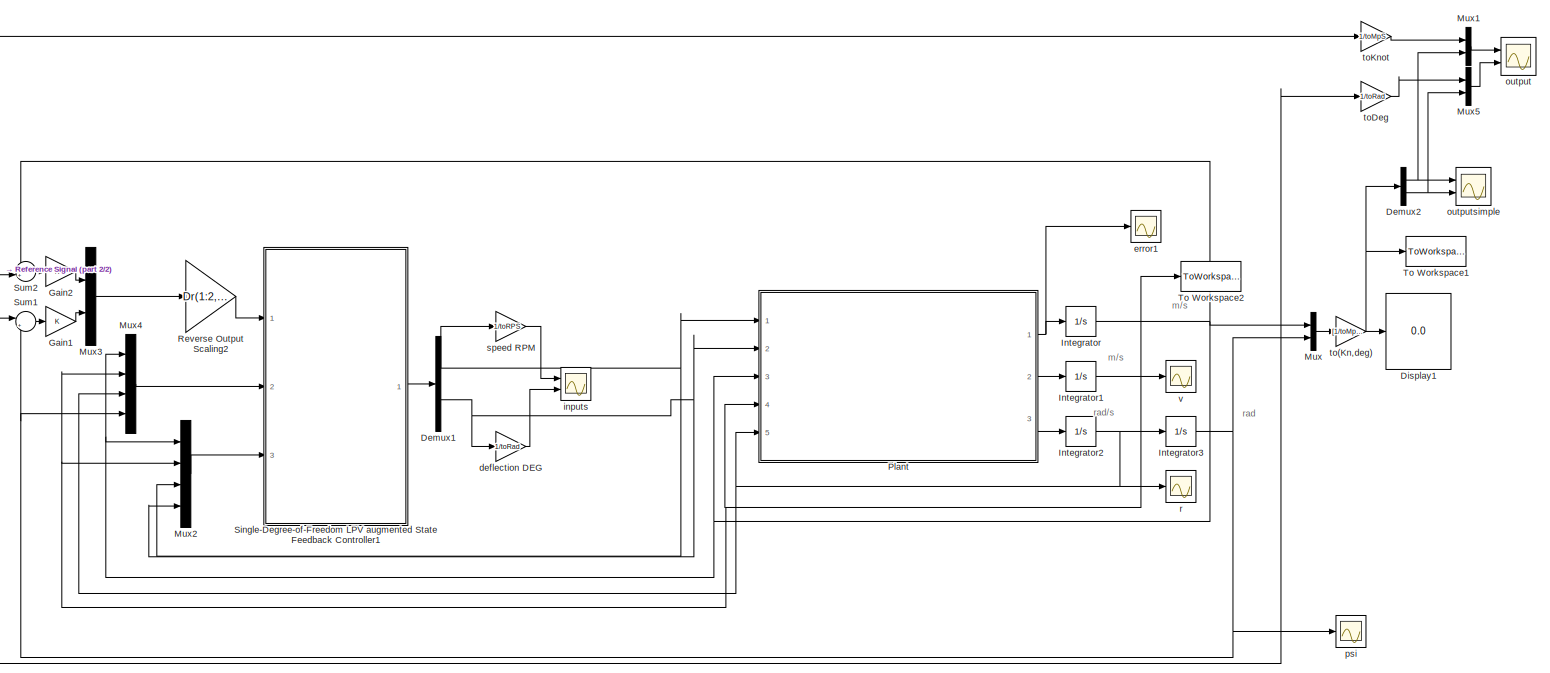
[diagram: root canvas - part 1/2, most of the canvas]
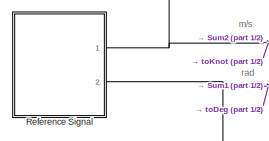
[diagram: root canvas - part 2/2, middle left region]
MODEL slx_003b346977f2
KIND model
CONFIG AbsTol = auto
CONFIG EnableMultiTasking = on
CONFIG FixedStep = .1
CONFIG MaxStep = auto
CONFIG MinStep = auto
CONFIG PostLoadFcn = load QLPV_data_2017-11-27_19-42.mat\nload Trajectory_data_Cux_Visby.rtz2017-11-16_14-55.mat
CONFIG RelTol = 1e-3
CONFIG SampleTimeConstraint = Unconstrained
CONFIG Solver = FixedStepAuto
CONFIG SolverName = FixedStepAuto
CONFIG StartTime = 0.0
CONFIG StopTime = time(end)
BLOCK [Demux] Demux1
  DisplayOption = bar
  Outputs = 2
  Ports = [1, 2]
BLOCK [Demux] Demux2
  DisplayOption = bar
  Outputs = 2
  Ports = [1, 2]
BLOCK [Display] Display1
  Decimation = 1
  Ports = [1]
BLOCK [Gain] Gain1
  OutDataTypeStr = Inherit: Inherit via internal rule
  ParamDataTypeStr = Inherit: Inherit via internal rule
  SaturateOnIntegerOverflow = off
BLOCK [Gain] Gain2
  OutDataTypeStr = Inherit: Inherit via internal rule
  ParamDataTypeStr = Inherit: Inherit via internal rule
  SaturateOnIntegerOverflow = off
BLOCK [Integrator] Integrator
  InitialCondition = .1*toMpS
  LimitOutput = on
  LowerSaturationLimit = 1e-1*toMpS
  Ports = [1, 1]
  UpperSaturationLimit = 16*toMpS
BLOCK [Integrator] Integrator1
  LowerSaturationLimit = -1*toMpS
  Ports = [1, 1]
  UpperSaturationLimit = 1*toMpS
BLOCK [Integrator] Integrator2
  Ports = [1, 1]
BLOCK [Integrator] Integrator3
  IgnoreLimit = on
  InitialCondition = 0*toRad
  LowerSaturationLimit = -180*toRad
  Ports = [1, 1]
  UpperSaturationLimit = 180*toRad
  WrapState = on
  WrappedStateLowerValue = -180*toRad
  WrappedStateUpperValue = 180*toRad
BLOCK [Mux] Mux
  DisplayOption = bar
  Inputs = 2
  Ports = [2, 1]
BLOCK [Mux] Mux1
  DisplayOption = bar
  Inputs = 2
  Ports = [2, 1]
BLOCK [Mux] Mux2
  DisplayOption = bar
  Ports = [4, 1]
BLOCK [Mux] Mux3
  DisplayOption = bar
  Inputs = 2
  Ports = [2, 1]
BLOCK [Mux] Mux4
  DisplayOption = bar
  Ports = [4, 1]
BLOCK [Mux] Mux5
  DisplayOption = bar
  Inputs = 2
  Ports = [2, 1]
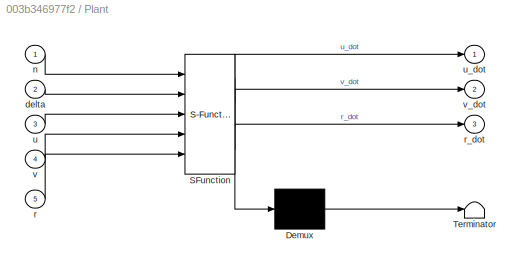
BLOCK [SubSystem] Plant
  ErrorFcn = Stateflow.Translate.translate
  PermitHierarchicalResolution = ExplicitOnly
  Ports = [5, 3]
  RequestExecContextInheritance = off
  SFBlockType = MATLAB Function
  TreatAsAtomicUnit = on
  Variant = off
BLOCK [Demux] Plant/ Demux 
  Outputs = 1
  Ports = [1, 1]
BLOCK [S-Function] Plant/ SFunction 
  EnableBusSupport = on
  FunctionName = sf_sfun
  PortCounts = [5 4]
  Ports = [5, 4]
  SFcnIsStateOwnerBlock = off
  SFunctionDeploymentMode = off
  Tag = Stateflow S-Function SimQLPV 2
BLOCK [Terminator] Plant/ Terminator 
BLOCK [Inport] Plant/delta
  IconDisplay = Port number
  Port = 2
BLOCK [Inport] Plant/n
  IconDisplay = Port number
BLOCK [Inport] Plant/r
  IconDisplay = Port number
  Port = 5
BLOCK [Outport] Plant/r_dot
  IconDisplay = Port number
  Port = 3
BLOCK [Inport] Plant/u
  IconDisplay = Port number
  Port = 3
BLOCK [Outport] Plant/u_dot
  IconDisplay = Port number
BLOCK [Inport] Plant/v
  IconDisplay = Port number
  Port = 4
BLOCK [Outport] Plant/v_dot
  IconDisplay = Port number
  Port = 2
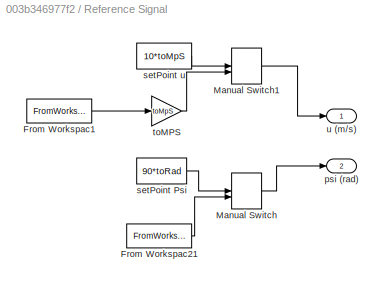
BLOCK [SubSystem] Reference Signal
  Ports = [0, 2]
  RequestExecContextInheritance = off
  Variant = off
BLOCK [FromWorkspace] Reference Signal/From Workspac1
  Interpolate = off
  OutputAfterFinalValue = Holding final value
  SampleTime = 0
  VariableName = [time ref_u]
BLOCK [FromWorkspace] Reference Signal/From Workspac21
  Interpolate = off
  OutputAfterFinalValue = Holding final value
  SampleTime = 0
  VariableName = [time ref_psi]
BLOCK [ManualSwitch] Reference Signal/Manual Switch
BLOCK [ManualSwitch] Reference Signal/Manual Switch1
BLOCK [Outport] Reference Signal/psi (rad)
  IconDisplay = Port number
  Port = 2
BLOCK [Constant] Reference Signal/setPoint Psi
  Value = 90*toRad
BLOCK [Constant] Reference Signal/setPoint u
  Value = 10*toMpS
BLOCK [Gain] Reference Signal/toMPS
  Gain = toMpS
  OutDataTypeStr = Inherit: Inherit via internal rule
  ParamDataTypeStr = Inherit: Inherit via internal rule
  SaturateOnIntegerOverflow = off
BLOCK [Outport] Reference Signal/u (m//s)
  IconDisplay = Port number
BLOCK [Gain] Reverse Output Scaling2
  Gain = Dr(1:2,1:2)^-1
  Multiplication = Matrix(K*u)
  OutDataTypeStr = Inherit: Inherit via internal rule
  ParamDataTypeStr = Inherit: Inherit via internal rule
  SaturateOnIntegerOverflow = off
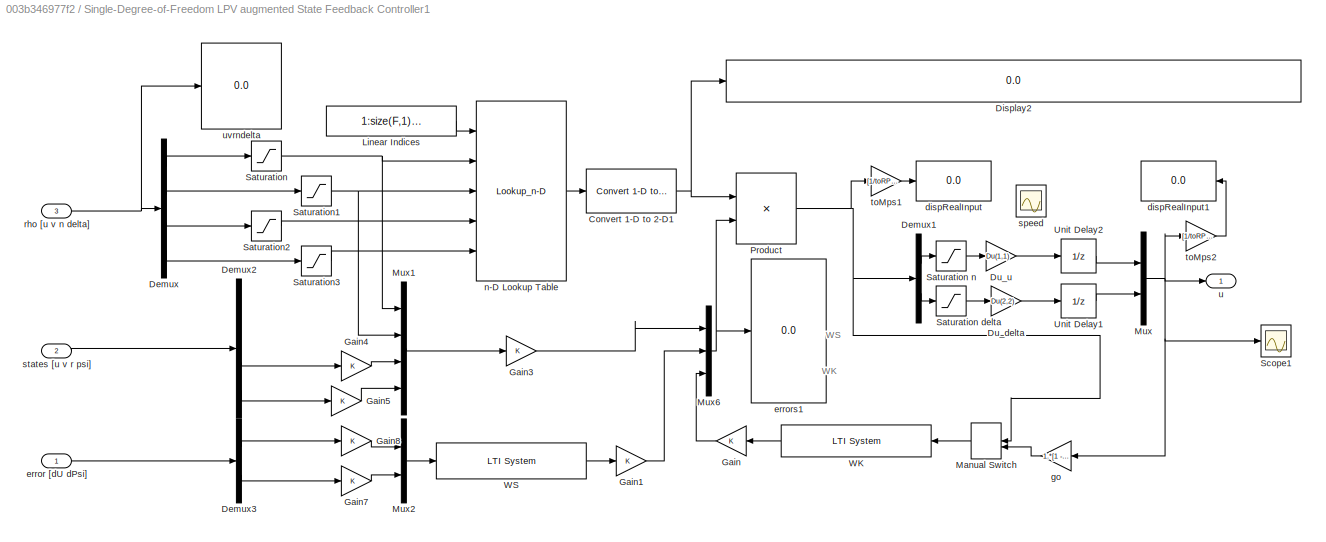
BLOCK [SubSystem] Single-Degree-of-Freedom LPV augmented State Feedback Controller1
  Ports = [3, 1]
  RequestExecContextInheritance = off
  Variant = off
BLOCK [Reference] Single-Degree-of-Freedom LPV augmented State Feedback Controller1/Convert 1-D to 2-D1  REF=dspsigattribs/Convert 1-D to 2-D
  Ports = [1, 1]
  SourceBlock = dspsigattribs/Convert 1-D to 2-D
  SourceProductBaseCode = DS
  SourceProductName = DSP System Toolbox
  SourceType = Convert 1-D to 2-D
BLOCK [Demux] Single-Degree-of-Freedom LPV augmented State Feedback Controller1/Demux
  DisplayOption = bar
  Ports = [1, 4]
BLOCK [Demux] Single-Degree-of-Freedom LPV augmented State Feedback Controller1/Demux1
  DisplayOption = bar
  Outputs = 2
  Ports = [1, 2]
BLOCK [Demux] Single-Degree-of-Freedom LPV augmented State Feedback Controller1/Demux2
  DisplayOption = bar
  Ports = [1, 4]
BLOCK [Demux] Single-Degree-of-Freedom LPV augmented State Feedback Controller1/Demux3
  DisplayOption = bar
  Outputs = 2
  Ports = [1, 2]
BLOCK [Display] Single-Degree-of-Freedom LPV augmented State Feedback Controller1/Display2
  Decimation = 1
  Ports = [1]
BLOCK [Gain] Single-Degree-of-Freedom LPV augmented State Feedback Controller1/Du_delta
  Gain = Du(2,2)
  OutDataTypeStr = Inherit: Inherit via internal rule
  ParamDataTypeStr = Inherit: Inherit via internal rule
  SaturateOnIntegerOverflow = off
BLOCK [Gain] Single-Degree-of-Freedom LPV augmented State Feedback Controller1/Du_u
  Gain = Du(1,1)
  OutDataTypeStr = Inherit: Inherit via internal rule
  ParamDataTypeStr = Inherit: Inherit via internal rule
  SaturateOnIntegerOverflow = off
BLOCK [Gain] Single-Degree-of-Freedom LPV augmented State Feedback Controller1/Gain
  OutDataTypeStr = Inherit: Inherit via internal rule
  ParamDataTypeStr = Inherit: Inherit via internal rule
  SaturateOnIntegerOverflow = off
BLOCK [Gain] Single-Degree-of-Freedom LPV augmented State Feedback Controller1/Gain1
  OutDataTypeStr = Inherit: Inherit via internal rule
  ParamDataTypeStr = Inherit: Inherit via internal rule
  SaturateOnIntegerOverflow = off
BLOCK [Gain] Single-Degree-of-Freedom LPV augmented State Feedback Controller1/Gain3
  OutDataTypeStr = Inherit: Inherit via internal rule
  ParamDataTypeStr = Inherit: Inherit via internal rule
  SaturateOnIntegerOverflow = off
BLOCK [Gain] Single-Degree-of-Freedom LPV augmented State Feedback Controller1/Gain4
  OutDataTypeStr = Inherit: Inherit via internal rule
  ParamDataTypeStr = Inherit: Inherit via internal rule
  SaturateOnIntegerOverflow = off
BLOCK [Gain] Single-Degree-of-Freedom LPV augmented State Feedback Controller1/Gain5
  OutDataTypeStr = Inherit: Inherit via internal rule
  ParamDataTypeStr = Inherit: Inherit via internal rule
  SaturateOnIntegerOverflow = off
BLOCK [Gain] Single-Degree-of-Freedom LPV augmented State Feedback Controller1/Gain7
  OutDataTypeStr = Inherit: Inherit via internal rule
  ParamDataTypeStr = Inherit: Inherit via internal rule
  SaturateOnIntegerOverflow = off
BLOCK [Gain] Single-Degree-of-Freedom LPV augmented State Feedback Controller1/Gain8
  OutDataTypeStr = Inherit: Inherit via internal rule
  ParamDataTypeStr = Inherit: Inherit via internal rule
  SaturateOnIntegerOverflow = off
BLOCK [Constant] Single-Degree-of-Freedom LPV augmented State Feedback Controller1/Linear Indices
  Value = 1:size(F,1)*size(F,2)
BLOCK [ManualSwitch] Single-Degree-of-Freedom LPV augmented State Feedback Controller1/Manual Switch
  CurrentSetting = 0
BLOCK [Mux] Single-Degree-of-Freedom LPV augmented State Feedback Controller1/Mux
  DisplayOption = bar
  Inputs = 2
  Ports = [2, 1]
BLOCK [Mux] Single-Degree-of-Freedom LPV augmented State Feedback Controller1/Mux1
  DisplayOption = bar
  Ports = [4, 1]
BLOCK [Mux] Single-Degree-of-Freedom LPV augmented State Feedback Controller1/Mux2
  DisplayOption = bar
  Inputs = 2
  Ports = [2, 1]
BLOCK [Mux] Single-Degree-of-Freedom LPV augmented State Feedback Controller1/Mux6
  DisplayOption = bar
  Inputs = 3
  Ports = [3, 1]
BLOCK [Product] Single-Degree-of-Freedom LPV augmented State Feedback Controller1/Product
  InputSameDT = off
  Multiplication = Matrix(*)
  OutDataTypeStr = Inherit: Inherit via internal rule
  Ports = [2, 1]
  RndMeth = Floor
  SaturateOnIntegerOverflow = off
BLOCK [Saturate] Single-Degree-of-Freedom LPV augmented State Feedback Controller1/Saturation
  InputPortMap = u0
  LowerLimit = F.Parameter.u.Range(1)
  Ports = [1, 1]
  UpperLimit = F.Parameter.u.Range(2)
BLOCK [Saturate] Single-Degree-of-Freedom LPV augmented State Feedback Controller1/Saturation delta
  InputPortMap = u0
  LowerLimit = 10*toRad/Du(2,2)
  Ports = [1, 1]
  UpperLimit = -10*toRad/Du(2,2)
BLOCK [Saturate] Single-Degree-of-Freedom LPV augmented State Feedback Controller1/Saturation n
  InputPortMap = u0
  LinearizeAsGain = off
  LowerLimit = -70*toRPS/Du(1,1)
  Ports = [1, 1]
  UpperLimit = 80*toRPS/Du(1,1)
BLOCK [Saturate] Single-Degree-of-Freedom LPV augmented State Feedback Controller1/Saturation1
  InputPortMap = u0
  LowerLimit = F.Parameter.v.Range(1)
  Ports = [1, 1]
  UpperLimit = F.Parameter.v.Range(2)
BLOCK [Saturate] Single-Degree-of-Freedom LPV augmented State Feedback Controller1/Saturation2
  InputPortMap = u0
  LowerLimit = F.Parameter.n.Range(1)
  Ports = [1, 1]
  UpperLimit = F.Parameter.n.Range(2)
BLOCK [Saturate] Single-Degree-of-Freedom LPV augmented State Feedback Controller1/Saturation3
  InputPortMap = u0
  LowerLimit = F.Parameter.delta.Range(1)
  Ports = [1, 1]
  UpperLimit = F.Parameter.delta.Range(2)
BLOCK [Scope] Single-Degree-of-Freedom LPV augmented State Feedback Controller1/Scope1
  NumInputPorts = 1
  Ports = [1]
  ScopeSpecificationString = Simulink.scopes.TimeScopeBlockCfg('CurrentConfiguration', extmgr.ConfigurationSet(extmgr.Configuration('Core','General UI',true),extmgr.Configuration('Core','Source UI',true),extmgr.Configuration('Sources','WiredSimulink',true,'DataLoggingVariableName','ScopeData1'),extmgr.Configuration('Visuals','Time Domain',true,'SerializedDisplays',{struct('MinYLimReal','-1.66667','MaxYLimReal','1.66667','YLab...<+1506ch>
BLOCK [UnitDelay] Single-Degree-of-Freedom LPV augmented State Feedback Controller1/Unit Delay1
  InputProcessing = Elements as channels (sample based)
  SampleTime = -1
BLOCK [UnitDelay] Single-Degree-of-Freedom LPV augmented State Feedback Controller1/Unit Delay2
  InputProcessing = Elements as channels (sample based)
  SampleTime = -1
BLOCK [Reference] Single-Degree-of-Freedom LPV augmented State Feedback Controller1/WK  REF=cstblocks/LTI System
  Ports = [1, 1]
  SourceBlock = cstblocks/LTI System
  SourceProductBaseCode = CT
  SourceProductName = Control System Toolbox
  SourceType = LTI Block
BLOCK [Reference] Single-Degree-of-Freedom LPV augmented State Feedback Controller1/WS  REF=cstblocks/LTI System
  Ports = [1, 1]
  SourceBlock = cstblocks/LTI System
  SourceProductBaseCode = CT
  SourceProductName = Control System Toolbox
  SourceType = LTI Block
BLOCK [Display] Single-Degree-of-Freedom LPV augmented State Feedback Controller1/dispRealInput
  Decimation = 1
  Ports = [1]
BLOCK [Display] Single-Degree-of-Freedom LPV augmented State Feedback Controller1/dispRealInput1
  Decimation = 1
  Ports = [1]
BLOCK [Inport] Single-Degree-of-Freedom LPV augmented State Feedback Controller1/error [dU dPsi]
  IconDisplay = Port number
BLOCK [Display] Single-Degree-of-Freedom LPV augmented State Feedback Controller1/errors1
  Decimation = 1
  Ports = [1]
BLOCK [Gain] Single-Degree-of-Freedom LPV augmented State Feedback Controller1/go
  Gain = 1.*[1 -1]
  OutDataTypeStr = Inherit: Inherit via internal rule
  ParamDataTypeStr = Inherit: Inherit via internal rule
  SaturateOnIntegerOverflow = off
BLOCK [Lookup_n-D] Single-Degree-of-Freedom LPV augmented State Feedback Controller1/n-D Lookup Table
  BreakpointsForDimension1 = 1:size(F,1)*size(F,2)
  BreakpointsForDimension2 = F.Parameter.u.GridData
  BreakpointsForDimension3 = F.Parameter.v.GridData
  BreakpointsForDimension4 = F.Parameter.n.GridData
  BreakpointsForDimension5 = F.Parameter.delta.GridData
  BreakpointsForDimension6 = F.Parameter.delta.GridData
  ExtrapMethod = Clip
  InternalRulePriority = Speed
  NumberOfTableDimensions = 5
  Ports = [5, 1]
  RndMeth = Simplest
  Table = reshape(F.Data,[size(F,1)*size(F,2), size(F.Domain)])
  UseLastTableValue = on
BLOCK [Inport] Single-Degree-of-Freedom LPV augmented State Feedback Controller1/rho [u v n delta]
  IconDisplay = Port number
  Port = 3
BLOCK [Scope] Single-Degree-of-Freedom LPV augmented State Feedback Controller1/speed
  NumInputPorts = 1
  Ports = [1]
  ScopeSpecificationString = Simulink.scopes.TimeScopeBlockCfg('CurrentConfiguration', extmgr.ConfigurationSet(extmgr.Configuration('Core','General UI',true),extmgr.Configuration('Core','Source UI',true),extmgr.Configuration('Sources','WiredSimulink',true,'DataLoggingVariableName','ScopeData1'),extmgr.Configuration('Visuals','Time Domain',true,'SerializedDisplays',{struct('MinYLimReal','-21615146.90013','MaxYLimReal','1923789...<+1544ch>
BLOCK [Inport] Single-Degree-of-Freedom LPV augmented State Feedback Controller1/states [u v r psi]
  IconDisplay = Port number
  Port = 2
BLOCK [Gain] Single-Degree-of-Freedom LPV augmented State Feedback Controller1/toMps1
  Gain = [1/toRPS 1/toRad]
  OutDataTypeStr = Inherit: Inherit via internal rule
  ParamDataTypeStr = Inherit: Inherit via internal rule
  SaturateOnIntegerOverflow = off
BLOCK [Gain] Single-Degree-of-Freedom LPV augmented State Feedback Controller1/toMps2
  Gain = [1/toRPS 1/toRad]
  OutDataTypeStr = Inherit: Inherit via internal rule
  ParamDataTypeStr = Inherit: Inherit via internal rule
  SaturateOnIntegerOverflow = off
BLOCK [Outport] Single-Degree-of-Freedom LPV augmented State Feedback Controller1/u
  IconDisplay = Port number
BLOCK [Display] Single-Degree-of-Freedom LPV augmented State Feedback Controller1/uvrndelta
  Decimation = 1
  Ports = [1]
BLOCK [Sum] Sum1
  IconShape = round
  InputSameDT = off
  Inputs = |+-
  OutDataTypeStr = Inherit: Inherit via internal rule
  Ports = [2, 1]
  SaturateOnIntegerOverflow = off
BLOCK [Sum] Sum2
  IconShape = round
  InputSameDT = off
  Inputs = -+|
  OutDataTypeStr = Inherit: Inherit via internal rule
  Ports = [2, 1]
  SaturateOnIntegerOverflow = off
BLOCK [ToWorkspace] To Workspace1
  FixptAsFi = on
  MaxDataPoints = inf
  Ports = [1]
  SampleTime = -1
  SaveFormat = Timeseries
  VariableName = lpv_out
BLOCK [ToWorkspace] To Workspace2
  FixptAsFi = on
  MaxDataPoints = inf
  Ports = [1]
  SampleTime = -1
  SaveFormat = Timeseries
  VariableName = lpv_sway
BLOCK [Gain] deflection DEG
  Gain = 1/toRad
  OutDataTypeStr = Inherit: Inherit via internal rule
  ParamDataTypeStr = Inherit: Inherit via internal rule
  SaturateOnIntegerOverflow = off
BLOCK [Scope] error1
  NumInputPorts = 1
  Ports = [1]
  ScopeSpecificationString = Simulink.scopes.TimeScopeBlockCfg('CurrentConfiguration', extmgr.ConfigurationSet(extmgr.Configuration('Core','General UI',true),extmgr.Configuration('Core','Source UI',true),extmgr.Configuration('Sources','WiredSimulink',true,'DataLoggingVariableName','ScopeData1'),extmgr.Configuration('Visuals','Time Domain',true,'SerializedDisplays',{struct('MinYLimReal','-0.04911','MaxYLimReal','0.03007','YLab...<+1495ch>
BLOCK [Scope] inputs
  NumInputPorts = 2
  Ports = [2]
  ScopeSpecificationString = Simulink.scopes.TimeScopeBlockCfg('CurrentConfiguration', extmgr.ConfigurationSet(extmgr.Configuration('Core','General UI',true),extmgr.Configuration('Core','Source UI',true),extmgr.Configuration('Sources','WiredSimulink',true,'DataLoggingVariableName','ScopeData1'),extmgr.Configuration('Visuals','Time Domain',true,'SerializedDisplays',{struct('MinYLimReal','-100.00000','MaxYLimReal','100.00000','...<+2017ch>
BLOCK [Scope] output
  NumInputPorts = 2
  Ports = [2]
  ScopeSpecificationString = Simulink.scopes.TimeScopeBlockCfg('CurrentConfiguration', extmgr.ConfigurationSet(extmgr.Configuration('Core','General UI',true,'FigureColor',[1 1 1]),extmgr.Configuration('Core','Source UI',true),extmgr.Configuration('Sources','WiredSimulink',true,'DataLoggingVariableName','ScopeData1'),extmgr.Configuration('Visuals','Time Domain',true,'PlotType','Line','SerializedDisplays',{struct('MinYLimReal',...<+3918ch>
BLOCK [Scope] outputsimple
  NumInputPorts = 2
  Ports = [2]
  ScopeSpecificationString = Simulink.scopes.TimeScopeBlockCfg('CurrentConfiguration', extmgr.ConfigurationSet(extmgr.Configuration('Core','General UI',true,'FigureColor',[1 1 1]),extmgr.Configuration('Core','Source UI',true),extmgr.Configuration('Sources','WiredSimulink',true,'DataLoggingVariableName','ScopeData1'),extmgr.Configuration('Visuals','Time Domain',true,'PlotType','Line','SerializedDisplays',{struct('MinYLimReal',...<+4044ch>
BLOCK [Scope] psi
  NumInputPorts = 1
  Ports = [1]
  ScopeSpecificationString = Simulink.scopes.TimeScopeBlockCfg('CurrentConfiguration', extmgr.ConfigurationSet(extmgr.Configuration('Core','General UI',true),extmgr.Configuration('Core','Source UI',true),extmgr.Configuration('Sources','WiredSimulink',true,'DataLoggingVariableName','ScopeData2'),extmgr.Configuration('Visuals','Time Domain',true,'SerializedDisplays',{struct('MinYLimReal','-0.01386','MaxYLimReal','0.11992','YLab...<+1439ch>
BLOCK [Scope] r
  NumInputPorts = 1
  Ports = [1]
  ScopeSpecificationString = Simulink.scopes.TimeScopeBlockCfg('CurrentConfiguration', extmgr.ConfigurationSet(extmgr.Configuration('Core','General UI',true),extmgr.Configuration('Core','Source UI',true),extmgr.Configuration('Sources','WiredSimulink',true,'DataLoggingVariableName','ScopeData2'),extmgr.Configuration('Visuals','Time Domain',true,'SerializedDisplays',{struct('MinYLimReal','-0.0000047','MaxYLimReal','0.0000005','...<+1440ch>
BLOCK [Gain] speed RPM
  Gain = 1/toRPS
  OutDataTypeStr = Inherit: Inherit via internal rule
  ParamDataTypeStr = Inherit: Inherit via internal rule
  SaturateOnIntegerOverflow = off
BLOCK [Gain] to(Kn,deg)
  Gain = [1/toMpS 1/toRad]
  OutDataTypeStr = Inherit: Inherit via internal rule
  ParamDataTypeStr = Inherit: Inherit via internal rule
  SaturateOnIntegerOverflow = off
BLOCK [Gain] toDeg
  Gain = 1/toRad
  OutDataTypeStr = Inherit: Inherit via internal rule
  ParamDataTypeStr = Inherit: Inherit via internal rule
  SaturateOnIntegerOverflow = off
BLOCK [Gain] toKnot
  Gain = 1/toMpS
  OutDataTypeStr = Inherit: Inherit via internal rule
  ParamDataTypeStr = Inherit: Inherit via internal rule
  SaturateOnIntegerOverflow = off
BLOCK [Scope] v
  NumInputPorts = 1
  Ports = [1]
  ScopeSpecificationString = Simulink.scopes.TimeScopeBlockCfg('CurrentConfiguration', extmgr.ConfigurationSet(extmgr.Configuration('Core','General UI',true),extmgr.Configuration('Core','Source UI',true),extmgr.Configuration('Sources','WiredSimulink',true,'DataLoggingVariableName','ScopeData1'),extmgr.Configuration('Visuals','Time Domain',true,'SerializedDisplays',{struct('MinYLimReal','-0.00002','MaxYLimReal','0.00017','YLab...<+1463ch>
ANNOTATION (root): m/s
ANNOTATION (root): rad
ANNOTATION (root): rad/s
ANNOTATION Single-Degree-of-Freedom LPV augmented State Feedback Controller1: WK
ANNOTATION Single-Degree-of-Freedom LPV augmented State Feedback Controller1: WS
NET Demux1:1 -> Mux2:3, Plant:1, speed RPM:1
NET Demux1:2 -> Mux2:4, Plant:2, deflection DEG:1
NET Demux2:1 -> Mux1:2, outputsimple:1
NET Demux2:2 -> Mux5:2, outputsimple:2
LINE Gain1:1 -> Mux3:2
LINE Gain2:1 -> Mux3:1
NET Integrator1:1 -> Mux2:2, Mux4:2, Plant:4, To Workspace2:1, v:1
NET Integrator2:1 -> Integrator3:1, Mux4:3, Plant:5, r:1
NET Integrator3:1 -> Mux4:4, Mux:2, Sum1:2, psi:1
NET Integrator:1 -> Mux2:1, Mux4:1, Mux:1, Plant:3, Sum2:1
LINE Mux1:1 -> output:1
LINE Mux2:1 -> Single-Degree-of-Freedom LPV augmented State Feedback Controller1:3
LINE Mux3:1 -> Reverse Output Scaling2:1
LINE Mux4:1 -> Single-Degree-of-Freedom LPV augmented State Feedback Controller1:2
LINE Mux5:1 -> output:2
LINE Mux:1 -> to(Kn,deg):1
NET Plant:1 -> Integrator:1, error1:1
LINE Plant:2 -> Integrator1:1
LINE Plant:3 -> Integrator2:1
LINE Reference Signal/From Workspac1:1 -> Reference Signal/toMPS:1
LINE Reference Signal/From Workspac21:1 -> Reference Signal/Manual Switch:2
LINE Reference Signal/Manual Switch1:1 -> Reference Signal/u (m//s):1
LINE Reference Signal/Manual Switch:1 -> Reference Signal/psi (rad):1
LINE Reference Signal/setPoint Psi:1 -> Reference Signal/Manual Switch:1
LINE Reference Signal/setPoint u:1 -> Reference Signal/Manual Switch1:1
LINE Reference Signal/toMPS:1 -> Reference Signal/Manual Switch1:2
NET Reference Signal:1 -> Sum2:2, toKnot:1
NET Reference Signal:2 -> Sum1:1, toDeg:1
LINE Reverse Output Scaling2:1 -> Single-Degree-of-Freedom LPV augmented State Feedback Controller1:1
NET Single-Degree-of-Freedom LPV augmented State Feedback Controller1/Convert 1-D to 2-D1:1 -> Single-Degree-of-Freedom LPV augmented State Feedback Controller1/Display2:1, Single-Degree-of-Freedom LPV augmented State Feedback Controller1/Product:1
LINE Single-Degree-of-Freedom LPV augmented State Feedback Controller1/Demux1:1 -> Single-Degree-of-Freedom LPV augmented State Feedback Controller1/Saturation n:1
LINE Single-Degree-of-Freedom LPV augmented State Feedback Controller1/Demux1:2 -> Single-Degree-of-Freedom LPV augmented State Feedback Controller1/Saturation delta:1
LINE Single-Degree-of-Freedom LPV augmented State Feedback Controller1/Demux2:3 -> Single-Degree-of-Freedom LPV augmented State Feedback Controller1/Gain4:1
LINE Single-Degree-of-Freedom LPV augmented State Feedback Controller1/Demux2:4 -> Single-Degree-of-Freedom LPV augmented State Feedback Controller1/Gain5:1
LINE Single-Degree-of-Freedom LPV augmented State Feedback Controller1/Demux3:1 -> Single-Degree-of-Freedom LPV augmented State Feedback Controller1/Gain8:1
LINE Single-Degree-of-Freedom LPV augmented State Feedback Controller1/Demux3:2 -> Single-Degree-of-Freedom LPV augmented State Feedback Controller1/Gain7:1
LINE Single-Degree-of-Freedom LPV augmented State Feedback Controller1/Demux:1 -> Single-Degree-of-Freedom LPV augmented State Feedback Controller1/Saturation:1
LINE Single-Degree-of-Freedom LPV augmented State Feedback Controller1/Demux:2 -> Single-Degree-of-Freedom LPV augmented State Feedback Controller1/Saturation1:1
LINE Single-Degree-of-Freedom LPV augmented State Feedback Controller1/Demux:3 -> Single-Degree-of-Freedom LPV augmented State Feedback Controller1/Saturation2:1
LINE Single-Degree-of-Freedom LPV augmented State Feedback Controller1/Demux:4 -> Single-Degree-of-Freedom LPV augmented State Feedback Controller1/Saturation3:1
LINE Single-Degree-of-Freedom LPV augmented State Feedback Controller1/Du_delta:1 -> Single-Degree-of-Freedom LPV augmented State Feedback Controller1/Unit Delay1:1
LINE Single-Degree-of-Freedom LPV augmented State Feedback Controller1/Du_u:1 -> Single-Degree-of-Freedom LPV augmented State Feedback Controller1/Unit Delay2:1
LINE Single-Degree-of-Freedom LPV augmented State Feedback Controller1/Gain1:1 -> Single-Degree-of-Freedom LPV augmented State Feedback Controller1/Mux6:2
LINE Single-Degree-of-Freedom LPV augmented State Feedback Controller1/Gain3:1 -> Single-Degree-of-Freedom LPV augmented State Feedback Controller1/Mux6:1
LINE Single-Degree-of-Freedom LPV augmented State Feedback Controller1/Gain4:1 -> Single-Degree-of-Freedom LPV augmented State Feedback Controller1/Mux1:3
LINE Single-Degree-of-Freedom LPV augmented State Feedback Controller1/Gain5:1 -> Single-Degree-of-Freedom LPV augmented State Feedback Controller1/Mux1:4
LINE Single-Degree-of-Freedom LPV augmented State Feedback Controller1/Gain7:1 -> Single-Degree-of-Freedom LPV augmented State Feedback Controller1/Mux2:2
LINE Single-Degree-of-Freedom LPV augmented State Feedback Controller1/Gain8:1 -> Single-Degree-of-Freedom LPV augmented State Feedback Controller1/Mux2:1
LINE Single-Degree-of-Freedom LPV augmented State Feedback Controller1/Gain:1 -> Single-Degree-of-Freedom LPV augmented State Feedback Controller1/Mux6:3
LINE Single-Degree-of-Freedom LPV augmented State Feedback Controller1/Linear Indices:1 -> Single-Degree-of-Freedom LPV augmented State Feedback Controller1/n-D Lookup Table:1
LINE Single-Degree-of-Freedom LPV augmented State Feedback Controller1/Manual Switch:1 -> Single-Degree-of-Freedom LPV augmented State Feedback Controller1/WK:1
LINE Single-Degree-of-Freedom LPV augmented State Feedback Controller1/Mux1:1 -> Single-Degree-of-Freedom LPV augmented State Feedback Controller1/Gain3:1
LINE Single-Degree-of-Freedom LPV augmented State Feedback Controller1/Mux2:1 -> Single-Degree-of-Freedom LPV augmented State Feedback Controller1/WS:1
NET Single-Degree-of-Freedom LPV augmented State Feedback Controller1/Mux6:1 -> Single-Degree-of-Freedom LPV augmented State Feedback Controller1/Product:2, Single-Degree-of-Freedom LPV augmented State Feedback Controller1/errors1:1
NET Single-Degree-of-Freedom LPV augmented State Feedback Controller1/Mux:1 -> Single-Degree-of-Freedom LPV augmented State Feedback Controller1/Scope1:1, Single-Degree-of-Freedom LPV augmented State Feedback Controller1/go:1, Single-Degree-of-Freedom LPV augmented State Feedback Controller1/toMps2:1, Single-Degree-of-Freedom LPV augmented State Feedback Controller1/u:1
NET Single-Degree-of-Freedom LPV augmented State Feedback Controller1/Product:1 -> Single-Degree-of-Freedom LPV augmented State Feedback Controller1/Demux1:1, Single-Degree-of-Freedom LPV augmented State Feedback Controller1/Manual Switch:1, Single-Degree-of-Freedom LPV augmented State Feedback Controller1/toMps1:1
LINE Single-Degree-of-Freedom LPV augmented State Feedback Controller1/Saturation delta:1 -> Single-Degree-of-Freedom LPV augmented State Feedback Controller1/Du_delta:1
LINE Single-Degree-of-Freedom LPV augmented State Feedback Controller1/Saturation n:1 -> Single-Degree-of-Freedom LPV augmented State Feedback Controller1/Du_u:1
NET Single-Degree-of-Freedom LPV augmented State Feedback Controller1/Saturation1:1 -> Single-Degree-of-Freedom LPV augmented State Feedback Controller1/Mux1:2, Single-Degree-of-Freedom LPV augmented State Feedback Controller1/n-D Lookup Table:3
LINE Single-Degree-of-Freedom LPV augmented State Feedback Controller1/Saturation2:1 -> Single-Degree-of-Freedom LPV augmented State Feedback Controller1/n-D Lookup Table:4
LINE Single-Degree-of-Freedom LPV augmented State Feedback Controller1/Saturation3:1 -> Single-Degree-of-Freedom LPV augmented State Feedback Controller1/n-D Lookup Table:5
NET Single-Degree-of-Freedom LPV augmented State Feedback Controller1/Saturation:1 -> Single-Degree-of-Freedom LPV augmented State Feedback Controller1/Mux1:1, Single-Degree-of-Freedom LPV augmented State Feedback Controller1/n-D Lookup Table:2
LINE Single-Degree-of-Freedom LPV augmented State Feedback Controller1/Unit Delay1:1 -> Single-Degree-of-Freedom LPV augmented State Feedback Controller1/Mux:2
LINE Single-Degree-of-Freedom LPV augmented State Feedback Controller1/Unit Delay2:1 -> Single-Degree-of-Freedom LPV augmented State Feedback Controller1/Mux:1
LINE Single-Degree-of-Freedom LPV augmented State Feedback Controller1/WK:1 -> Single-Degree-of-Freedom LPV augmented State Feedback Controller1/Gain:1
LINE Single-Degree-of-Freedom LPV augmented State Feedback Controller1/WS:1 -> Single-Degree-of-Freedom LPV augmented State Feedback Controller1/Gain1:1
LINE Single-Degree-of-Freedom LPV augmented State Feedback Controller1/error [dU dPsi]:1 -> Single-Degree-of-Freedom LPV augmented State Feedback Controller1/Demux3:1
LINE Single-Degree-of-Freedom LPV augmented State Feedback Controller1/go:1 -> Single-Degree-of-Freedom LPV augmented State Feedback Controller1/Manual Switch:2
LINE Single-Degree-of-Freedom LPV augmented State Feedback Controller1/n-D Lookup Table:1 -> Single-Degree-of-Freedom LPV augmented State Feedback Controller1/Convert 1-D to 2-D1:1
NET Single-Degree-of-Freedom LPV augmented State Feedback Controller1/rho [u v n delta]:1 -> Single-Degree-of-Freedom LPV augmented State Feedback Controller1/Demux:1, Single-Degree-of-Freedom LPV augmented State Feedback Controller1/uvrndelta:1
LINE Single-Degree-of-Freedom LPV augmented State Feedback Controller1/states [u v r psi]:1 -> Single-Degree-of-Freedom LPV augmented State Feedback Controller1/Demux2:1
LINE Single-Degree-of-Freedom LPV augmented State Feedback Controller1/toMps1:1 -> Single-Degree-of-Freedom LPV augmented State Feedback Controller1/dispRealInput:1
LINE Single-Degree-of-Freedom LPV augmented State Feedback Controller1/toMps2:1 -> Single-Degree-of-Freedom LPV augmented State Feedback Controller1/dispRealInput1:1
LINE Single-Degree-of-Freedom LPV augmented State Feedback Controller1:1 -> Demux1:1
LINE Sum1:1 -> Gain1:1
LINE Sum2:1 -> Gain2:1
LINE deflection DEG:1 -> inputs:2
LINE speed RPM:1 -> inputs:1
NET to(Kn,deg):1 -> Demux2:1, Display1:1, To Workspace1:1
LINE toDeg:1 -> Mux5:1
LINE toKnot:1 -> Mux1:1
note: NET lines group one-source signal fan-out (src -> all destinations, sorted); 1:1 wires keep LINE
CHART Plant states=1 transitions=1
  STATE_LABEL 'eML_blk_kernel()'
  STATE_LABEL 'SCRIPT:\nfunction [u_dot,v_dot,r_dot] = fcn(n,delta,u,v,r)\n% n = n/60;\n% v = 0;\n% r = 0;\nif (u==0)\n    u = 1e-1;\nend\n% Normalization variables\nL   =  304.8;          % length of ship (m)\ng   =  9.8;            % acceleration of gravity (m/s^2)\n\n% Parameters, hydrodynamic derivatives and main dimensions\n% delta_max  = 10;       % max rudder angle      (deg)\n% Ddelta_max = 2.33;     % max rudder deri...<+2649ch>'
